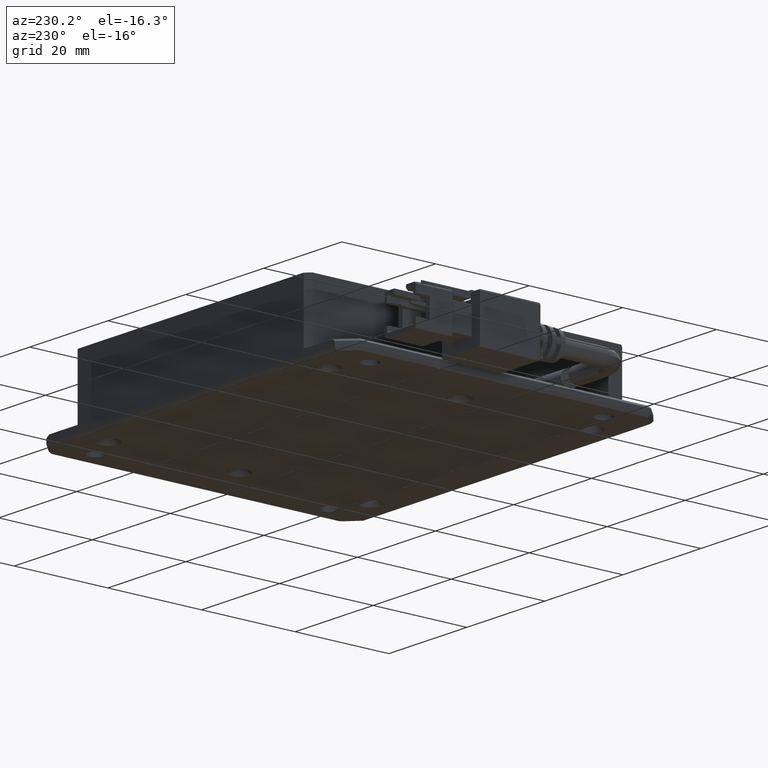
[diagram: clean part render]
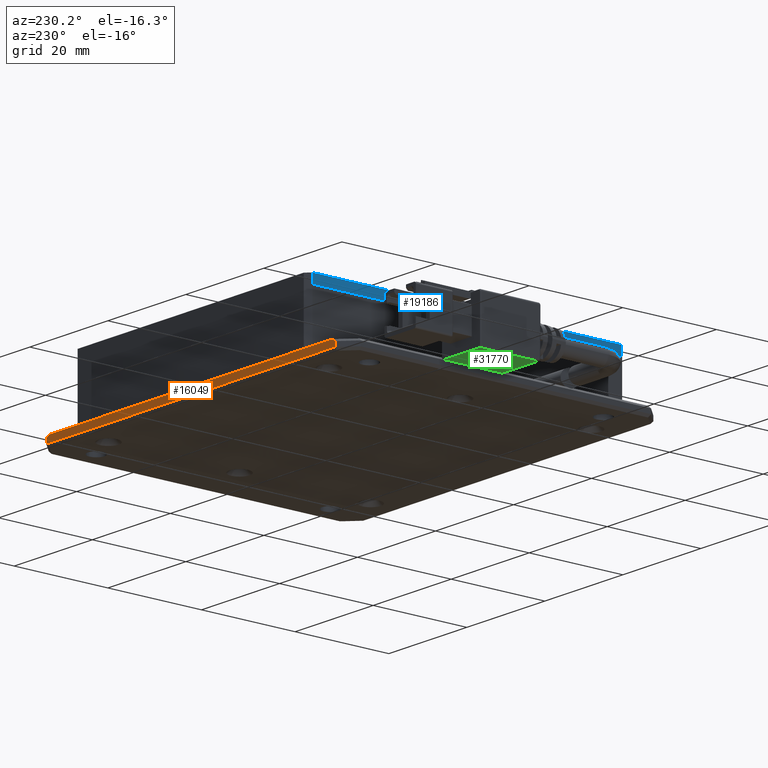
[diagram: same view with three faces highlighted in distinct colors, each labeled with its STEP entity id]
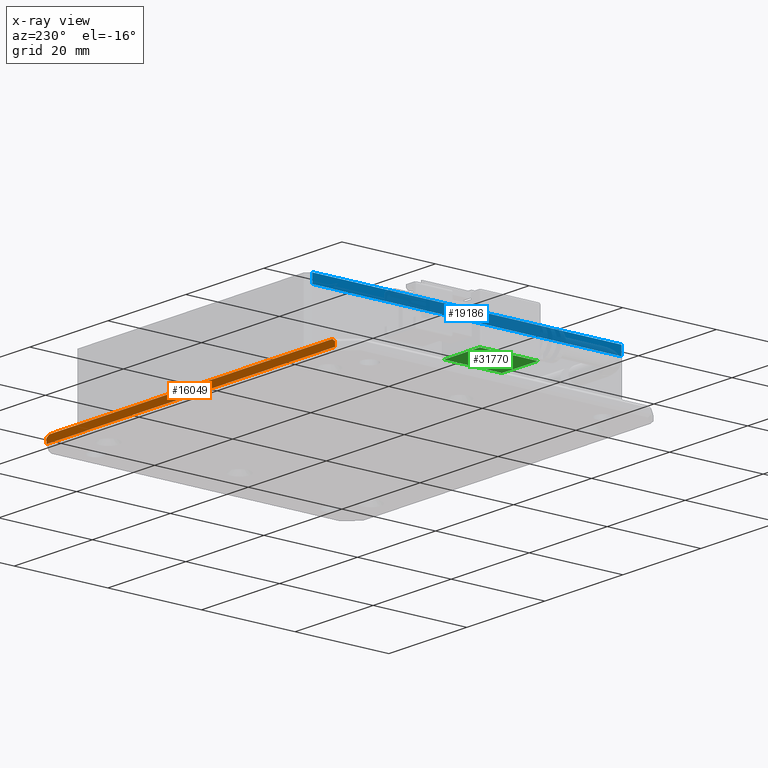
[diagram: x-ray of the same camera — body ghosted, the three highlighted faces saturated]
A machine part, auxiliary view with three faces highlighted in distinct colors.
The next image is the same camera in x-ray (body ghosted, the three faces saturated) — at least one of them is partly hidden behind the body in this view.
Their STEP definitions:

[orange] entity #16049 — the highlighted planar face has unit normal (-0, -1, 0).
#1151 = CARTESIAN_POINT ( 'NONE',  ( 34.74226804123708900, 33.35089728904162600, -2.000000000004547500 ) ) ;
#2184 = ORIENTED_EDGE ( 'NONE', *, *, #8128, .T. ) ;
#2293 = VERTEX_POINT ( 'NONE', #36859 ) ;
#2368 = CARTESIAN_POINT ( 'NONE',  ( 31.74226804123707200, 33.35089728904162600, -2.000000000004547500 ) ) ;
#2696 = CARTESIAN_POINT ( 'NONE',  ( 34.74226804123708900, 33.35089728904162600, -4.547577592273199800E-012 ) ) ;
#4244 = DIRECTION ( 'NONE',  ( -0.0000000000000000000, 0.0000000000000000000, 1.000000000000000000 ) ) ;
#4430 = DIRECTION ( 'NONE',  ( -0.8164965809277323600, 1.359739955510528600E-016, -0.5773502691896168500 ) ) ;
#4783 = CARTESIAN_POINT ( 'NONE',  ( 34.74226804123708900, 33.35089728904162600, -1.500000000004533300 ) ) ;
#5851 = ORIENTED_EDGE ( 'NONE', *, *, #32661, .F. ) ;
#6705 = CARTESIAN_POINT ( 'NONE',  ( -41.55062517757639300, 33.35089728904164000, -4.556911639479496100E-012 ) ) ;
#7768 = CARTESIAN_POINT ( 'NONE',  ( 31.74226804123707200, 33.35089728904162600, -1.500000000004535000 ) ) ;
#8128 = EDGE_CURVE ( 'NONE', #2293, #21065, #19789, .T. ) ;
#8394 = CARTESIAN_POINT ( 'NONE',  ( 31.74226804123707200, 33.35089728904162600, -0.5000000000045480300 ) ) ;
#8766 = CARTESIAN_POINT ( 'NONE',  ( -42.25773195876289600, 33.35089728904164000, -1.500000000004531000 ) ) ;
#9198 = CARTESIAN_POINT ( 'NONE',  ( -42.25773195876291100, 33.35089728904164000, -2.000000000004547500 ) ) ;
#9839 = VECTOR ( 'NONE', #4430, 1000.000000000000100 ) ;
#11628 = LINE ( 'NONE', #8394, #34309 ) ;
#12258 = DIRECTION ( 'NONE',  ( 0.0000000000000000000, -0.0000000000000000000, -1.000000000000000000 ) ) ;
#12285 = VECTOR ( 'NONE', #30347, 1000.000000000000000 ) ;
#14123 = VECTOR ( 'NONE', #38540, 1000.000000000000000 ) ;
#14770 = ORIENTED_EDGE ( 'NONE', *, *, #21707, .F. ) ;
#15665 = CARTESIAN_POINT ( 'NONE',  ( 31.03516126005049400, 33.35089728904162600, -4.544623141353176800E-012 ) ) ;
#16049 = ADVANCED_FACE ( 'NONE', ( #26147 ), #25596, .F. ) ;
#18738 = ORIENTED_EDGE ( 'NONE', *, *, #38537, .F. ) ;
#19502 = LINE ( 'NONE', #2696, #12285 ) ;
#19789 = LINE ( 'NONE', #2368, #27023 ) ;
#21065 = VERTEX_POINT ( 'NONE', #7768 ) ;
#21414 = EDGE_CURVE ( 'NONE', #23822, #25642, #32487, .T. ) ;
#21707 = EDGE_CURVE ( 'NONE', #25642, #21065, #30515, .T. ) ;
#22539 = EDGE_LOOP ( 'NONE', ( #18738, #25944, #5851, #2184, #14770, #27033 ) ) ;
#22561 = DIRECTION ( 'NONE',  ( -1.665334536937734800E-016, -1.000000000000000000, 0.0000000000000000000 ) ) ;
#23817 = DIRECTION ( 'NONE',  ( -0.8164965809277381400, 1.359739955510538400E-016, 0.5773502691896086300 ) ) ;
#23822 = VERTEX_POINT ( 'NONE', #25673 ) ;
#24983 = AXIS2_PLACEMENT_3D ( 'NONE', #1151, #22561, #4244 ) ;
#25596 = PLANE ( 'NONE',  #24983 ) ;
#25642 = VERTEX_POINT ( 'NONE', #8766 ) ;
#25673 = CARTESIAN_POINT ( 'NONE',  ( -42.25773195876292500, 33.35089728904164000, -0.5000000000045454800 ) ) ;
#25920 = CARTESIAN_POINT ( 'NONE',  ( -16.11966077130505000, 33.35089728904161200, 17.98240738378320100 ) ) ;
#25944 = ORIENTED_EDGE ( 'NONE', *, *, #36606, .F. ) ;
#26147 = FACE_OUTER_BOUND ( 'NONE', #22539, .T. ) ;
#26246 = VERTEX_POINT ( 'NONE', #15665 ) ;
#26917 = DIRECTION ( 'NONE',  ( 0.0000000000000000000, 0.0000000000000000000, -1.000000000000000000 ) ) ;
#27023 = VECTOR ( 'NONE', #26917, 1000.000000000000000 ) ;
#27033 = ORIENTED_EDGE ( 'NONE', *, *, #21414, .F. ) ;
#27137 = LINE ( 'NONE', #25920, #9839 ) ;
#30347 = DIRECTION ( 'NONE',  ( -1.000000000000000000, 1.665334536937734800E-016, -0.0000000000000000000 ) ) ;
#30515 = LINE ( 'NONE', #4783, #14123 ) ;
#32487 = LINE ( 'NONE', #9198, #39656 ) ;
#32661 = EDGE_CURVE ( 'NONE', #2293, #26246, #11628, .T. ) ;
#33910 = VERTEX_POINT ( 'NONE', #6705 ) ;
#34309 = VECTOR ( 'NONE', #23817, 1000.000000000000000 ) ;
#36606 = EDGE_CURVE ( 'NONE', #26246, #33910, #19502, .T. ) ;
#36859 = CARTESIAN_POINT ( 'NONE',  ( 31.74226804123707200, 33.35089728904162600, -0.5000000000045463600 ) ) ;
#38537 = EDGE_CURVE ( 'NONE', #33910, #23822, #27137, .T. ) ;
#38540 = DIRECTION ( 'NONE',  ( 1.000000000000000000, -1.665334536937734800E-016, -0.0000000000000000000 ) ) ;
#39656 = VECTOR ( 'NONE', #12258, 1000.000000000000000 ) ;

[blue] entity #19186 — the highlighted planar face has unit normal (1, 0, 0).
#206 = PLANE ( 'NONE',  #17645 ) ;
#329 = CARTESIAN_POINT ( 'NONE',  ( -35.25773195876289600, -34.64910271095834600, 12.99999999999545100 ) ) ;
#2663 = EDGE_CURVE ( 'NONE', #20090, #31661, #7908, .T. ) ;
#3075 = EDGE_CURVE ( 'NONE', #31661, #36290, #17866, .T. ) ;
#3436 = DIRECTION ( 'NONE',  ( 0.0000000000000000000, 0.0000000000000000000, -1.000000000000000000 ) ) ;
#4034 = EDGE_CURVE ( 'NONE', #36290, #14313, #21911, .T. ) ;
#7908 = LINE ( 'NONE', #13349, #23222 ) ;
#8991 = CARTESIAN_POINT ( 'NONE',  ( -35.25773195876290300, 32.35089728904165400, 10.99999999999545100 ) ) ;
#10281 = DIRECTION ( 'NONE',  ( 0.0000000000000000000, 1.000000000000000000, 0.0000000000000000000 ) ) ;
#10660 = LINE ( 'NONE', #19748, #34271 ) ;
#10754 = CARTESIAN_POINT ( 'NONE',  ( -35.25773195876290300, 32.35089728904165400, 12.99999999999545100 ) ) ;
#11580 = EDGE_CURVE ( 'NONE', #14313, #20090, #10660, .T. ) ;
#13349 = CARTESIAN_POINT ( 'NONE',  ( -35.25773195876289600, 33.35089728904165400, 10.99999999999545100 ) ) ;
#13359 = ORIENTED_EDGE ( 'NONE', *, *, #2663, .F. ) ;
#14313 = VERTEX_POINT ( 'NONE', #28617 ) ;
#16151 = ORIENTED_EDGE ( 'NONE', *, *, #4034, .F. ) ;
#16351 = CARTESIAN_POINT ( 'NONE',  ( -35.25773195876289600, 32.35089728904165400, 12.99999999999545100 ) ) ;
#17645 = AXIS2_PLACEMENT_3D ( 'NONE', #329, #21783, #3436 ) ;
#17866 = LINE ( 'NONE', #16351, #26101 ) ;
#19186 = ADVANCED_FACE ( 'NONE', ( #37804 ), #206, .F. ) ;
#19721 = EDGE_LOOP ( 'NONE', ( #24048, #16151, #20782, #13359 ) ) ;
#19748 = CARTESIAN_POINT ( 'NONE',  ( -35.25773195876289600, -33.64910271095834600, 12.99999999999545100 ) ) ;
#20090 = VERTEX_POINT ( 'NONE', #24539 ) ;
#20782 = ORIENTED_EDGE ( 'NONE', *, *, #3075, .F. ) ;
#20927 = VECTOR ( 'NONE', #28632, 1000.000000000000000 ) ;
#21783 = DIRECTION ( 'NONE',  ( 1.000000000000000000, 0.0000000000000000000, 0.0000000000000000000 ) ) ;
#21911 = LINE ( 'NONE', #37827, #20927 ) ;
#23222 = VECTOR ( 'NONE', #10281, 1000.000000000000000 ) ;
#24048 = ORIENTED_EDGE ( 'NONE', *, *, #11580, .F. ) ;
#24539 = CARTESIAN_POINT ( 'NONE',  ( -35.25773195876289600, -33.64910271095834600, 10.99999999999545100 ) ) ;
#26101 = VECTOR ( 'NONE', #31629, 1000.000000000000000 ) ;
#28617 = CARTESIAN_POINT ( 'NONE',  ( -35.25773195876289600, -33.64910271095834600, 12.99999999999545100 ) ) ;
#28632 = DIRECTION ( 'NONE',  ( 0.0000000000000000000, -1.000000000000000000, -0.0000000000000000000 ) ) ;
#31629 = DIRECTION ( 'NONE',  ( -0.0000000000000000000, -0.0000000000000000000, 1.000000000000000000 ) ) ;
#31661 = VERTEX_POINT ( 'NONE', #8991 ) ;
#34271 = VECTOR ( 'NONE', #35160, 1000.000000000000000 ) ;
#35160 = DIRECTION ( 'NONE',  ( 0.0000000000000000000, 0.0000000000000000000, -1.000000000000000000 ) ) ;
#36290 = VERTEX_POINT ( 'NONE', #10754 ) ;
#37804 = FACE_OUTER_BOUND ( 'NONE', #19721, .T. ) ;
#37827 = CARTESIAN_POINT ( 'NONE',  ( -35.25773195876289600, -34.64910271095834600, 12.99999999999545100 ) ) ;

[green] entity #31770 — the highlighted planar face has unit normal (0, 0, 1).
#831 = VERTEX_POINT ( 'NONE', #17928 ) ;
#1135 = LINE ( 'NONE', #30727, #25655 ) ;
#4169 = CARTESIAN_POINT ( 'NONE',  ( -52.75773195876287500, 6.750897289041652100, -3.450000000004555600 ) ) ;
#4866 = EDGE_CURVE ( 'NONE', #33691, #16366, #1135, .T. ) ;
#7142 = VERTEX_POINT ( 'NONE', #7191 ) ;
#7191 = CARTESIAN_POINT ( 'NONE',  ( -53.15773195876287400, 6.750897289041652100, -3.450000000004556500 ) ) ;
#7250 = DIRECTION ( 'NONE',  ( 1.000000000000000000, 6.162975822039154000E-033, -1.232595164407830900E-032 ) ) ;
#7318 = VECTOR ( 'NONE', #16482, 1000.000000000000000 ) ;
#8549 = DIRECTION ( 'NONE',  ( -1.000000000000000000, -6.162975822039154000E-033, 1.232595164407830900E-032 ) ) ;
#10931 = ORIENTED_EDGE ( 'NONE', *, *, #35565, .F. ) ;
#12589 = DIRECTION ( 'NONE',  ( 1.232595164407830900E-032, 6.162975822039154700E-033, 1.000000000000000000 ) ) ;
#12950 = LINE ( 'NONE', #4169, #36550 ) ;
#13403 = CARTESIAN_POINT ( 'NONE',  ( -53.15773195876287400, 19.35089728904165400, -3.450000000004556500 ) ) ;
#14582 = CARTESIAN_POINT ( 'NONE',  ( -62.35773195876287600, 19.15089728904165200, -3.450000000004556500 ) ) ;
#15318 = DIRECTION ( 'NONE',  ( 6.162975822039154000E-033, -1.000000000000000000, 6.162975822039154700E-033 ) ) ;
#15382 = LINE ( 'NONE', #13403, #7318 ) ;
#15604 = FACE_OUTER_BOUND ( 'NONE', #32911, .T. ) ;
#16176 = LINE ( 'NONE', #26975, #32630 ) ;
#16366 = VERTEX_POINT ( 'NONE', #33925 ) ;
#16482 = DIRECTION ( 'NONE',  ( -6.162975822039154000E-033, 1.000000000000000000, -6.162975822039154700E-033 ) ) ;
#17928 = CARTESIAN_POINT ( 'NONE',  ( -53.15773195876287400, 19.15089728904165200, -3.450000000004556500 ) ) ;
#18564 = EDGE_CURVE ( 'NONE', #831, #33691, #16176, .T. ) ;
#18612 = PLANE ( 'NONE',  #30884 ) ;
#24650 = ORIENTED_EDGE ( 'NONE', *, *, #4866, .F. ) ;
#25655 = VECTOR ( 'NONE', #15318, 1000.000000000000000 ) ;
#26975 = CARTESIAN_POINT ( 'NONE',  ( -52.75773195876287500, 19.15089728904165200, -3.450000000004555600 ) ) ;
#28955 = EDGE_CURVE ( 'NONE', #7142, #831, #15382, .T. ) ;
#30727 = CARTESIAN_POINT ( 'NONE',  ( -62.35773195876287600, 19.35089728904165400, -3.450000000004555600 ) ) ;
#30884 = AXIS2_PLACEMENT_3D ( 'NONE', #31065, #12589, #34177 ) ;
#31065 = CARTESIAN_POINT ( 'NONE',  ( -52.75773195876287500, 19.35089728904165400, -3.450000000004555600 ) ) ;
#31770 = ADVANCED_FACE ( 'NONE', ( #15604 ), #18612, .F. ) ;
#32630 = VECTOR ( 'NONE', #8549, 1000.000000000000000 ) ;
#32911 = EDGE_LOOP ( 'NONE', ( #34926, #36096, #10931, #24650 ) ) ;
#33691 = VERTEX_POINT ( 'NONE', #14582 ) ;
#33925 = CARTESIAN_POINT ( 'NONE',  ( -62.35773195876288400, 6.750897289041652100, -3.450000000004555600 ) ) ;
#34177 = DIRECTION ( 'NONE',  ( 1.000000000000000000, 6.162975822039154000E-033, -1.232595164407830900E-032 ) ) ;
#34926 = ORIENTED_EDGE ( 'NONE', *, *, #18564, .F. ) ;
#35565 = EDGE_CURVE ( 'NONE', #16366, #7142, #12950, .T. ) ;
#36096 = ORIENTED_EDGE ( 'NONE', *, *, #28955, .F. ) ;
#36550 = VECTOR ( 'NONE', #7250, 1000.000000000000000 ) ;